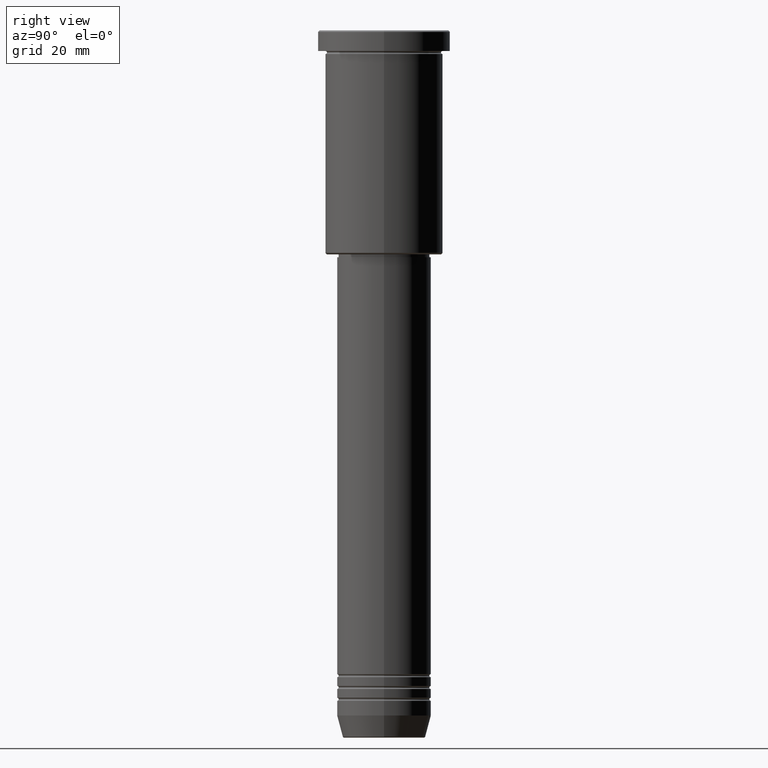
[diagram: clean part render]
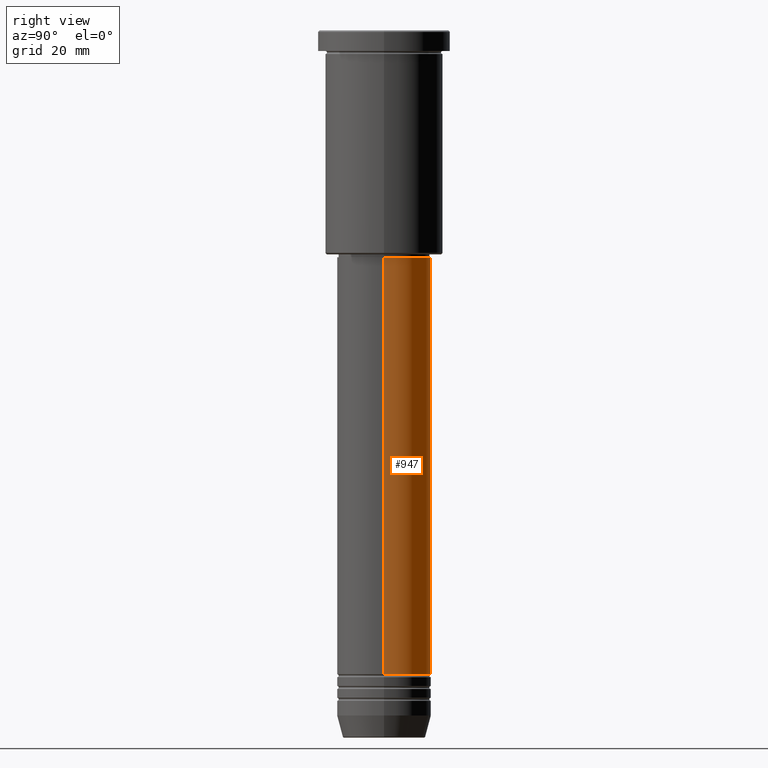
[diagram: same view with one face highlighted and labeled with its STEP entity id]
A machine part, right view. The second image highlights one B-rep face of the part: STEP entity #947.
In plain terms, the highlighted cylindrical surface (partial cylindrical patch) has radius 16 mm, axis along (-0, -0, 1).
Its self-contained STEP definition (entity closure, byte-faithful):
#38 = AXIS2_PLACEMENT_3D ( 'NONE', #628, #902, #170 ) ;
#59 = VECTOR ( 'NONE', #129, 1000.000000000000000 ) ;
#120 = VERTEX_POINT ( 'NONE', #519 ) ;
#129 = DIRECTION ( 'NONE',  ( -0.000000000000000000, -0.000000000000000000, 1.000000000000000000 ) ) ;
#133 = EDGE_LOOP ( 'NONE', ( #482, #613, #353, #687 ) ) ;
#152 = VERTEX_POINT ( 'NONE', #455 ) ;
#166 = CIRCLE ( 'NONE', #656, 16.00000000000000000 ) ;
#170 = DIRECTION ( 'NONE',  ( 1.000000000000000000, 0.000000000000000000, 0.000000000000000000 ) ) ;
#174 = FACE_OUTER_BOUND ( 'NONE', #133, .T. ) ;
#207 = EDGE_CURVE ( 'NONE', #152, #120, #324, .T. ) ;
#251 = CARTESIAN_POINT ( 'NONE',  ( 16.00000000000000000, 0.000000000000000000, -76.99999999999998579 ) ) ;
#254 = VERTEX_POINT ( 'NONE', #856 ) ;
#324 = CIRCLE ( 'NONE', #38, 16.00000000000000000 ) ;
#353 = ORIENTED_EDGE ( 'NONE', *, *, #587, .F. ) ;
#399 = CARTESIAN_POINT ( 'NONE',  ( 0.000000000000000000, 0.000000000000000000, -76.99999999999998579 ) ) ;
#403 = CARTESIAN_POINT ( 'NONE',  ( -16.00000000000000000, 1.959434878635765131E-15, 0.000000000000000000 ) ) ;
#455 = CARTESIAN_POINT ( 'NONE',  ( 16.00000000000000000, 0.000000000000000000, -218.5000000000000000 ) ) ;
#472 = DIRECTION ( 'NONE',  ( -0.000000000000000000, -0.000000000000000000, 1.000000000000000000 ) ) ;
#482 = ORIENTED_EDGE ( 'NONE', *, *, #207, .T. ) ;
#519 = CARTESIAN_POINT ( 'NONE',  ( -16.00000000000000000, 1.959434878635765131E-15, -218.5000000000000000 ) ) ;
#521 = EDGE_CURVE ( 'NONE', #120, #254, #681, .T. ) ;
#576 = VECTOR ( 'NONE', #472, 1000.000000000000000 ) ;
#587 = EDGE_CURVE ( 'NONE', #653, #254, #166, .T. ) ;
#613 = ORIENTED_EDGE ( 'NONE', *, *, #521, .T. ) ;
#628 = CARTESIAN_POINT ( 'NONE',  ( 0.000000000000000000, 0.000000000000000000, -218.5000000000000000 ) ) ;
#643 = LINE ( 'NONE', #1004, #576 ) ;
#653 = VERTEX_POINT ( 'NONE', #251 ) ;
#656 = AXIS2_PLACEMENT_3D ( 'NONE', #399, #933, #697 ) ;
#681 = LINE ( 'NONE', #403, #59 ) ;
#687 = ORIENTED_EDGE ( 'NONE', *, *, #929, .F. ) ;
#697 = DIRECTION ( 'NONE',  ( 1.000000000000000000, 0.000000000000000000, 0.000000000000000000 ) ) ;
#719 = CYLINDRICAL_SURFACE ( 'NONE', #806, 16.00000000000000000 ) ;
#739 = CARTESIAN_POINT ( 'NONE',  ( 0.000000000000000000, 0.000000000000000000, 0.000000000000000000 ) ) ;
#806 = AXIS2_PLACEMENT_3D ( 'NONE', #739, #1069, #897 ) ;
#856 = CARTESIAN_POINT ( 'NONE',  ( -16.00000000000000000, 1.959434878635765131E-15, -76.99999999999998579 ) ) ;
#897 = DIRECTION ( 'NONE',  ( 1.000000000000000000, 0.000000000000000000, 0.000000000000000000 ) ) ;
#902 = DIRECTION ( 'NONE',  ( -0.000000000000000000, -0.000000000000000000, 1.000000000000000000 ) ) ;
#929 = EDGE_CURVE ( 'NONE', #152, #653, #643, .T. ) ;
#933 = DIRECTION ( 'NONE',  ( -0.000000000000000000, -0.000000000000000000, 1.000000000000000000 ) ) ;
#947 = ADVANCED_FACE ( 'NONE', ( #174 ), #719, .T. ) ;
#1004 = CARTESIAN_POINT ( 'NONE',  ( 16.00000000000000000, 0.000000000000000000, 0.000000000000000000 ) ) ;
#1069 = DIRECTION ( 'NONE',  ( -0.000000000000000000, -0.000000000000000000, 1.000000000000000000 ) ) ;